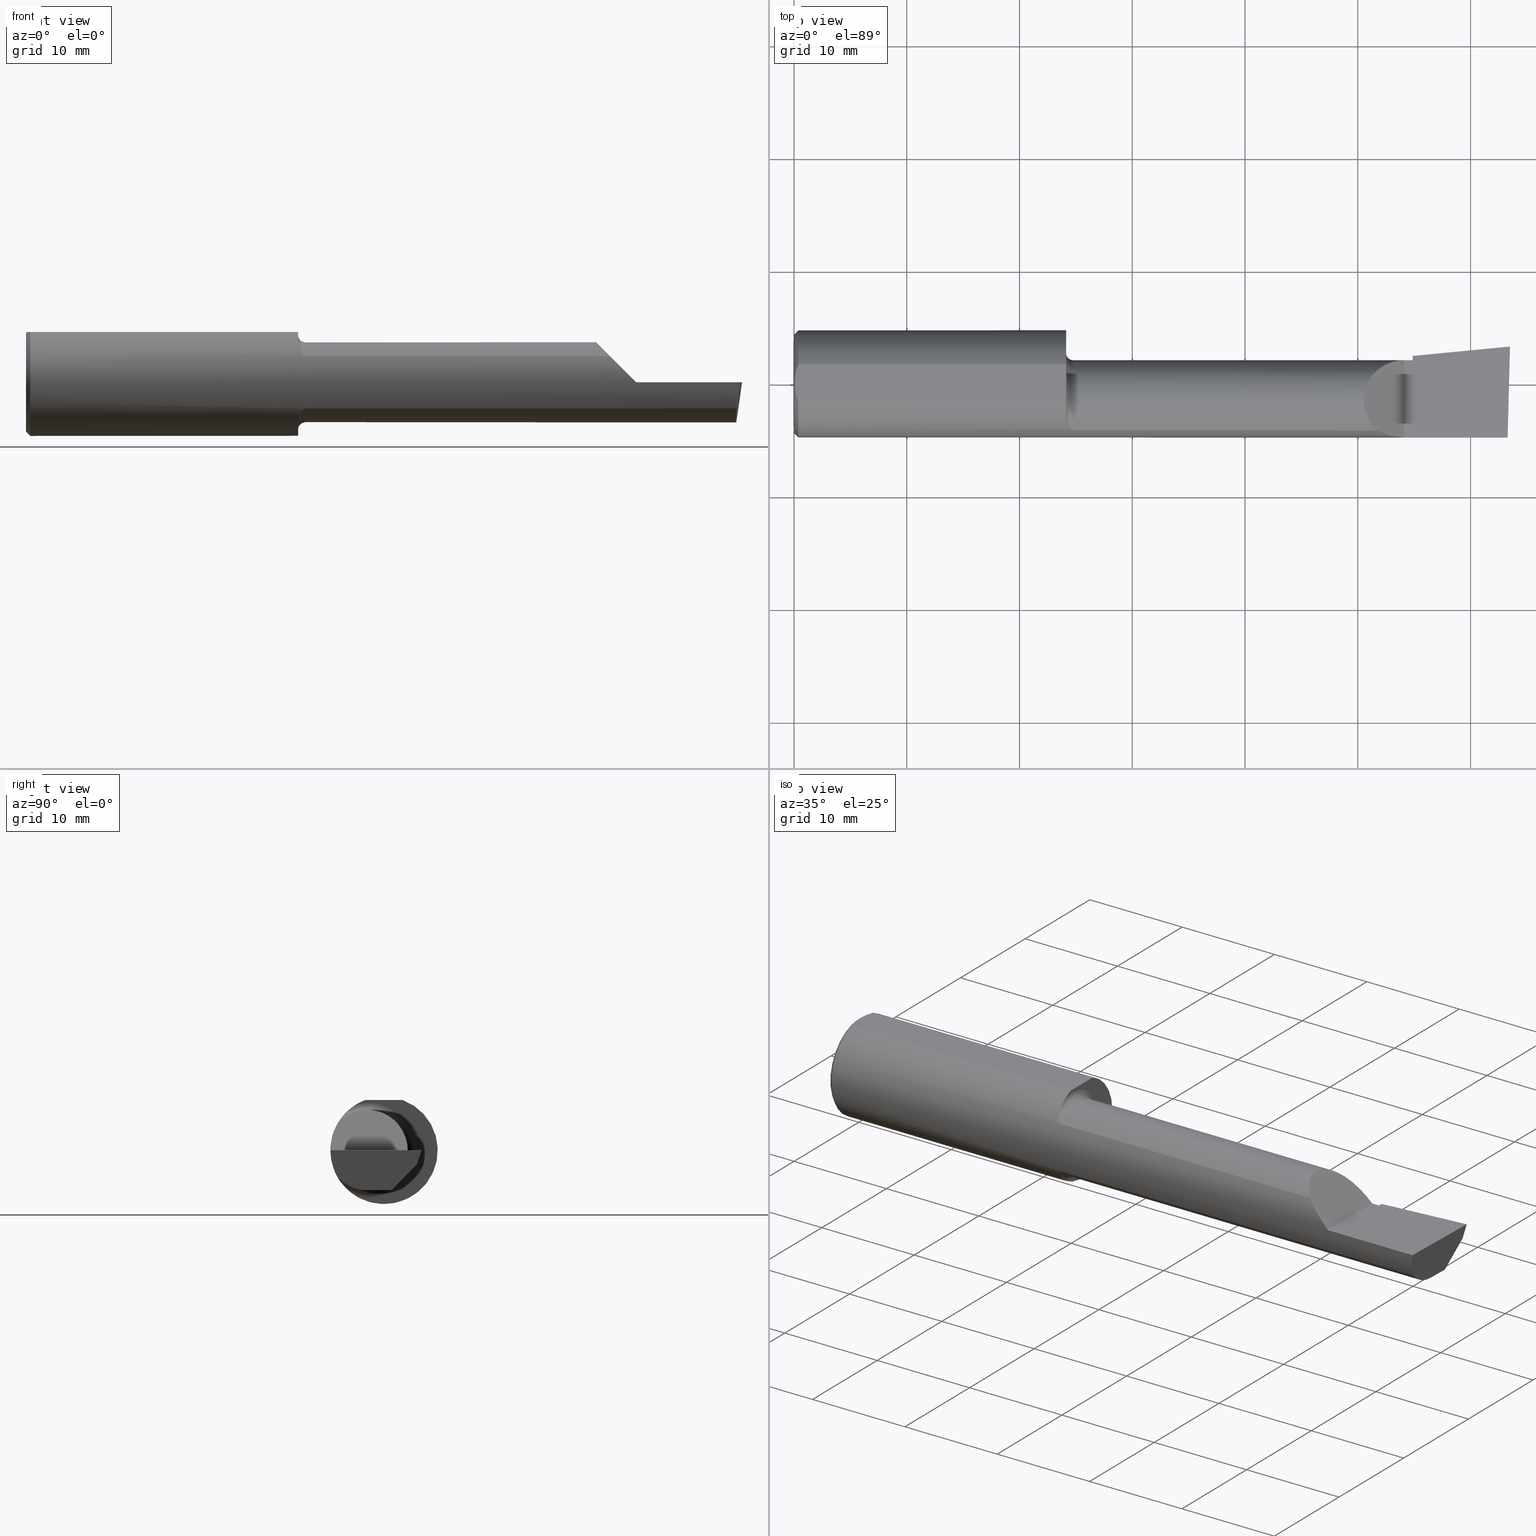
[diagram: canonical four-view strip — front | top / right | iso, engineering-drawing reading convention]
A machine part, canonical four-view strip (front | top / right | iso — engineering-drawing reading convention). The complete STEP part file that produces these views, byte-faithful:
ISO-10303-21;
HEADER;
FILE_DESCRIPTION (( 'STEP AP203' ),
    '1' );
FILE_NAME ('217489-B3201500.STEP',
    '2024-04-26T19:24:35',
    ( '' ),
    ( '' ),
    'SwSTEP 2.0',
    'SolidWorks 2022',
    '' );
FILE_SCHEMA (( 'CONFIG_CONTROL_DESIGN' ));
ENDSEC;

DATA;
#1 = CIRCLE ( 'NONE', #463, 0.1723499999999996424 ) ;
#2 = ADVANCED_FACE ( 'NONE', ( #567 ), #363, .T. ) ;
#3 = CONICAL_SURFACE ( 'NONE', #85, 0.1873499999999999888, 0.7853981633974602694 ) ;
#4 = CC_DESIGN_DATE_AND_TIME_ASSIGNMENT ( #501, #166, ( #450 ) ) ;
#5 = VERTEX_POINT ( 'NONE', #276 ) ;
#6 = APPROVAL_STATUS ( 'not_yet_approved' ) ;
#7 = CARTESIAN_POINT ( 'NONE',  ( 0.9728009145006649705, -0.1635956445997552022, 0.09130436773775203740 ) ) ;
#8 = ORIENTED_EDGE ( 'NONE', *, *, #311, .T. ) ;
#9 = COORDINATED_UNIVERSAL_TIME_OFFSET ( 8, 0, .BEHIND. ) ;
#10 = CARTESIAN_POINT ( 'NONE',  ( 0.01499999999999999424, 0.000000000000000000, -0.1873499999999999888 ) ) ;
#11 = CARTESIAN_POINT ( 'NONE',  ( 0.9749999999999999778, -0.1635956445993032859, -0.09130436773856137611 ) ) ;
#12 = VERTEX_POINT ( 'NONE', #504 ) ;
#13 = DATE_AND_TIME ( #256, #502 ) ;
#14 = CARTESIAN_POINT ( 'NONE',  ( 0.9709038625689692115, -0.1628809688430623848, 0.09258733509388457350 ) ) ;
#15 = VERTEX_POINT ( 'NONE', #611 ) ;
#16 = CARTESIAN_POINT ( 'NONE',  ( 2.160000000000000142, 0.09791172361283667636, 0.000000000000000000 ) ) ;
#17 = FACE_OUTER_BOUND ( 'NONE', #593, .T. ) ;
#18 = ORIENTED_EDGE ( 'NONE', *, *, #177, .F. ) ;
#19 = SHAPE_DEFINITION_REPRESENTATION ( #106, #73 ) ;
#20 = DIRECTION ( 'NONE',  ( 0.000000000000000000, 0.000000000000000000, 1.000000000000000000 ) ) ;
#21 = ORIENTED_EDGE ( 'NONE', *, *, #109, .F. ) ;
#22 = ADVANCED_FACE ( 'NONE', ( #368 ), #320, .F. ) ;
#23 = DIRECTION ( 'NONE',  ( -1.000000000000000000, -6.829619984160658046E-18, 0.000000000000000000 ) ) ;
#24 = ORIENTED_EDGE ( 'NONE', *, *, #467, .T. ) ;
#25 = CARTESIAN_POINT ( 'NONE',  ( 0.9499999999999999556, -0.05740000000000000657, 0.000000000000000000 ) ) ;
#26 = DIRECTION ( 'NONE',  ( -1.033731667140896077E-16, 0.000000000000000000, -1.000000000000000000 ) ) ;
#27 = CALENDAR_DATE ( 2024, 26, 4 ) ;
#28 = CARTESIAN_POINT ( 'NONE',  ( 0.01499999999999997863, -0.06597272163553657975, 0.1753499999999999781 ) ) ;
#29 = EDGE_CURVE ( 'NONE', #448, #488, #416, .T. ) ;
#30 = ORIENTED_EDGE ( 'NONE', *, *, #331, .F. ) ;
#31 = CIRCLE ( 'NONE', #526, 0.1873499999999999888 ) ;
#32 = CARTESIAN_POINT ( 'NONE',  ( 2.500000000000000000, 0.2373500000000000332, 0.1753499999999999504 ) ) ;
#33 = ORIENTED_EDGE ( 'NONE', *, *, #157, .T. ) ;
#34 = CIRCLE ( 'NONE', #118, 0.1650499999999999190 ) ;
#35 = CARTESIAN_POINT ( 'NONE',  ( 2.500000000000000000, -0.05739999999999999963, -0.1400500000000000633 ) ) ;
#36 = CARTESIAN_POINT ( 'NONE',  ( 0.01499999999999999424, 0.000000000000000000, -0.1873499999999999888 ) ) ;
#37 = LINE ( 'NONE', #189, #451 ) ;
#38 = CARTESIAN_POINT ( 'NONE',  ( 2.477889026591898247, -0.05682100378451882677, -0.1400500000000000633 ) ) ;
#39 = ADVANCED_FACE ( 'NONE', ( #45 ), #472, .F. ) ;
#40 = ORIENTED_EDGE ( 'NONE', *, *, #512, .F. ) ;
#41 = CARTESIAN_POINT ( 'NONE',  ( 2.481080296960508580, -0.1635956445993030639, -0.09130436773856169530 ) ) ;
#42 = CIRCLE ( 'NONE', #105, 0.1400499999999999245 ) ;
#43 = FACE_OUTER_BOUND ( 'NONE', #370, .T. ) ;
#44 = CARTESIAN_POINT ( 'NONE',  ( -9.564882787816662316E-19, 0.08264999999999995961, 3.267291166268304703E-16 ) ) ;
#45 = FACE_OUTER_BOUND ( 'NONE', #310, .T. ) ;
#46 = ORIENTED_EDGE ( 'NONE', *, *, #97, .T. ) ;
#47 = CARTESIAN_POINT ( 'NONE',  ( 0.9499999999999999556, 0.000000000000000000, 0.000000000000000000 ) ) ;
#48 = DIRECTION ( 'NONE',  ( -0.7071067811865511255, 0.000000000000000000, 0.7071067811865437980 ) ) ;
#49 = EDGE_CURVE ( 'NONE', #391, #15, #624, .T. ) ;
#50 = EDGE_LOOP ( 'NONE', ( #117, #299, #596, #99, #531, #215 ) ) ;
#51 = PLANE ( 'NONE',  #145 ) ;
#52 = CARTESIAN_POINT ( 'NONE',  ( 0.9749999999999999778, -0.1635956445993032859, -0.09130436773856137611 ) ) ;
#53 = ORGANIZATION ( 'UNSPECIFIED', 'UNSPECIFIED', '' ) ;
#54 = AXIS2_PLACEMENT_3D ( 'NONE', #614, #23, #128 ) ;
#55 = AXIS2_PLACEMENT_3D ( 'NONE', #412, #553, #265 ) ;
#56 = ORIENTED_EDGE ( 'NONE', *, *, #341, .T. ) ;
#57 = PERSON_AND_ORGANIZATION ( #191, #53 ) ;
#58 = PLANE ( 'NONE',  #198 ) ;
#59 = APPROVAL_DATE_TIME ( #13, #185 ) ;
#60 = LINE ( 'NONE', #296, #148 ) ;
#61 = VERTEX_POINT ( 'NONE', #143 ) ;
#62 = CARTESIAN_POINT ( 'NONE',  ( 0.000000000000000000, 0.000000000000000000, 0.000000000000000000 ) ) ;
#63 = CARTESIAN_POINT ( 'NONE',  ( 0.9499999999999999556, -0.1045082199249681848, -0.1557306416133593385 ) ) ;
#64 = ORIENTED_EDGE ( 'NONE', *, *, #446, .F. ) ;
#65 = CARTESIAN_POINT ( 'NONE',  ( 0.9580729541431403096, -0.1479074971576200548, 0.1152872342625229363 ) ) ;
#66 = ORIENTED_EDGE ( 'NONE', *, *, #139, .F. ) ;
#67 = PERSON_AND_ORGANIZATION ( #191, #53 ) ;
#68 = CARTESIAN_POINT ( 'NONE',  ( 0.003000000000000172667, -0.01126410975715121283, 0.1753500000000000059 ) ) ;
#69 = EDGE_CURVE ( 'NONE', #488, #339, #564, .T. ) ;
#70 = DIRECTION ( 'NONE',  ( -1.000000000000000000, -6.829619984160658046E-18, -0.000000000000000000 ) ) ;
#71 = ORIENTED_EDGE ( 'NONE', *, *, #382, .F. ) ;
#72 = DATE_AND_TIME ( #27, #220 ) ;
#73 = ADVANCED_BREP_SHAPE_REPRESENTATION ( '217489-B3201500', ( #312, #402 ), #355 ) ;
#74 = FACE_OUTER_BOUND ( 'NONE', #80, .T. ) ;
#75 = ORIENTED_EDGE ( 'NONE', *, *, #249, .T. ) ;
#76 = CARTESIAN_POINT ( 'NONE',  ( 0.01128414053810044941, -0.05542038647445821781, 0.1753499999999999781 ) ) ;
#77 = ORIENTED_EDGE ( 'NONE', *, *, #426, .T. ) ;
#78 = ORIENTED_EDGE ( 'NONE', *, *, #136, .T. ) ;
#79 = CARTESIAN_POINT ( 'NONE',  ( 0.000000000000000000, 0.000000000000000000, 0.000000000000000000 ) ) ;
#80 = EDGE_LOOP ( 'NONE', ( #483, #169 ) ) ;
#81 = LOCAL_TIME ( 12, 24, 35.00000000000000000, #344 ) ;
#82 = CIRCLE ( 'NONE', #178, 0.1400500000000000356 ) ;
#83 = DIRECTION ( 'NONE',  ( -0.06894566448119621160, 0.7160281025913034503, -0.6946583704589934793 ) ) ;
#84 = ORIENTED_EDGE ( 'NONE', *, *, #275, .T. ) ;
#85 = AXIS2_PLACEMENT_3D ( 'NONE', #108, #207, #433 ) ;
#86 = DIRECTION ( 'NONE',  ( 1.000000000000000000, 0.000000000000000000, 0.000000000000000000 ) ) ;
#87 = CARTESIAN_POINT ( 'NONE',  ( 2.129999999999999893, -0.1873499999999999888, 1.065442715258197396E-16 ) ) ;
#88 = EDGE_CURVE ( 'NONE', #124, #456, #376, .T. ) ;
#89 = CARTESIAN_POINT ( 'NONE',  ( 0.000000000000000000, 0.000000000000000000, 0.000000000000000000 ) ) ;
#90 = DIRECTION ( 'NONE',  ( 0.000000000000000000, 1.000000000000000000, 8.537024980200821325E-17 ) ) ;
#91 = DIRECTION ( 'NONE',  ( 0.000000000000000000, -1.000000000000000000, 0.000000000000000000 ) ) ;
#92 = AXIS2_PLACEMENT_3D ( 'NONE', #380, #146, #284 ) ;
#93 = DIRECTION ( 'NONE',  ( 0.000000000000000000, 0.000000000000000000, 1.000000000000000000 ) ) ;
#94 = CIRCLE ( 'NONE', #337, 0.1400500000000000356 ) ;
#95 = EDGE_LOOP ( 'NONE', ( #316, #500, #462, #497 ) ) ;
#96 = DIRECTION ( 'NONE',  ( -1.000000000000000000, 5.691349986800549142E-18, -0.000000000000000000 ) ) ;
#97 = EDGE_CURVE ( 'NONE', #12, #323, #94, .T. ) ;
#98 = CARTESIAN_POINT ( 'NONE',  ( 0.9499999999999999556, 0.000000000000000000, 0.000000000000000000 ) ) ;
#99 = ORIENTED_EDGE ( 'NONE', *, *, #360, .F. ) ;
#100 = PERSON_AND_ORGANIZATION_ROLE ( 'creator' ) ;
#101 = DIRECTION ( 'NONE',  ( 0.000000000000000000, -1.000000000000000000, 0.000000000000000000 ) ) ;
#102 = DATE_TIME_ROLE ( 'creation_date' ) ;
#103 = CARTESIAN_POINT ( 'NONE',  ( 0.9530259122056835563, -0.1310442973014115942, 0.1341609063345041708 ) ) ;
#104 = LOCAL_TIME ( 12, 24, 35.00000000000000000, #548 ) ;
#105 = AXIS2_PLACEMENT_3D ( 'NONE', #140, #187, #142 ) ;
#106 = PRODUCT_DEFINITION_SHAPE ( 'NONE', 'NONE',  #438 ) ;
#107 = DATE_AND_TIME ( #291, #104 ) ;
#108 = CARTESIAN_POINT ( 'NONE',  ( 0.01499999999999999424, 0.000000000000000000, 0.000000000000000000 ) ) ;
#109 = EDGE_CURVE ( 'NONE', #124, #15, #378, .T. ) ;
#110 = ORIENTED_EDGE ( 'NONE', *, *, #69, .F. ) ;
#111 = APPROVAL_ROLE ( '' ) ;
#112 = CARTESIAN_POINT ( 'NONE',  ( 0.9500000000000002887, -0.1045012500212954831, 0.1557348687830034384 ) ) ;
#113 = ORIENTED_EDGE ( 'NONE', *, *, #382, .T. ) ;
#114 = DIRECTION ( 'NONE',  ( 0.000000000000000000, 0.000000000000000000, 1.000000000000000000 ) ) ;
#115 = CARTESIAN_POINT ( 'NONE',  ( 0.9561458414306042153, -0.1426194794824340306, -0.1217813759115466965 ) ) ;
#116 = VECTOR ( 'NONE', #190, 39.37007874015748854 ) ;
#117 = ORIENTED_EDGE ( 'NONE', *, *, #121, .F. ) ;
#118 = AXIS2_PLACEMENT_3D ( 'NONE', #25, #70, #449 ) ;
#119 = EDGE_CURVE ( 'NONE', #61, #625, #199, .T. ) ;
#120 = CARTESIAN_POINT ( 'NONE',  ( 2.038695632261437130, -0.1635956445993029529, 0.09130436773856188959 ) ) ;
#121 = EDGE_CURVE ( 'NONE', #444, #61, #200, .T. ) ;
#122 = COORDINATED_UNIVERSAL_TIME_OFFSET ( 8, 0, .BEHIND. ) ;
#123 = CARTESIAN_POINT ( 'NONE',  ( 2.160000000000000142, 0.09791172361284175563, 3.308097179827818849E-16 ) ) ;
#124 = VERTEX_POINT ( 'NONE', #381 ) ;
#125 = CARTESIAN_POINT ( 'NONE',  ( 2.129999999999999893, 0.08264999999999983471, 1.065442715258197396E-16 ) ) ;
#126 = ORIENTED_EDGE ( 'NONE', *, *, #130, .T. ) ;
#127 = VECTOR ( 'NONE', #460, 39.37007874015748854 ) ;
#128 = DIRECTION ( 'NONE',  ( 6.829619984160658046E-18, -1.000000000000000000, 0.000000000000000000 ) ) ;
#129 = EDGE_LOOP ( 'NONE', ( #294, #228, #110, #71, #440 ) ) ;
#130 = EDGE_CURVE ( 'NONE', #208, #226, #343, .T. ) ;
#131 = PLANE ( 'NONE',  #54 ) ;
#132 = CARTESIAN_POINT ( 'NONE',  ( 2.509953961983671711, 0.1316084575252021438, -6.829619984160658046E-17 ) ) ;
#133 = PLANE ( 'NONE',  #373 ) ;
#134 = ORIENTED_EDGE ( 'NONE', *, *, #603, .F. ) ;
#135 = CARTESIAN_POINT ( 'NONE',  ( 2.160000000000000142, 0.01441505128072300204, -0.1202356058309979880 ) ) ;
#136 = EDGE_CURVE ( 'NONE', #5, #266, #571, .T. ) ;
#137 = DIRECTION ( 'NONE',  ( -0.7071067811865439090, 0.000000000000000000, -0.7071067811865512365 ) ) ;
#138 = VECTOR ( 'NONE', #182, 39.37007874015748143 ) ;
#139 = EDGE_CURVE ( 'NONE', #492, #556, #31, .T. ) ;
#140 = CARTESIAN_POINT ( 'NONE',  ( 0.9749999999999999778, -0.05740000000000000657, 0.000000000000000000 ) ) ;
#141 = CARTESIAN_POINT ( 'NONE',  ( 0.008244775919947424855, 0.04453482769755855164, 0.1753499999999999504 ) ) ;
#142 = DIRECTION ( 'NONE',  ( 0.000000000000000000, -1.000000000000000000, 0.000000000000000000 ) ) ;
#143 = CARTESIAN_POINT ( 'NONE',  ( 2.129999999999999893, -0.1873499999999999888, 1.065442715258197396E-16 ) ) ;
#144 = ADVANCED_FACE ( 'NONE', ( #43 ), #414, .T. ) ;
#145 = AXIS2_PLACEMENT_3D ( 'NONE', #16, #383, #386 ) ;
#146 = DIRECTION ( 'NONE',  ( 1.000000000000000000, 6.829619984160658046E-18, 0.000000000000000000 ) ) ;
#147 = B_SPLINE_CURVE_WITH_KNOTS ( 'NONE', 3,
 ( #52, #203, #387, #585, #345, #153, #160, #392, #115, #491, #536, #485, #63, #592 ),
 .UNSPECIFIED., .F., .F.,
 ( 4, 2, 2, 2, 2, 2, 4 ),
 ( 1.968340875534775316E-07, 0.0001667114270246243708, 0.0003332260199616952716, 0.0006662552058358422232, 0.001332313577584134500, 0.001998371949332426994, 0.002664430321080719921 ),
 .UNSPECIFIED. ) ;
#148 = VECTOR ( 'NONE', #301, 39.37007874015748854 ) ;
#149 = PERSON_AND_ORGANIZATION ( #191, #53 ) ;
#150 = CARTESIAN_POINT ( 'NONE',  ( 3.377502344341257155E-32, -0.1873499999999999610, 3.267291166268304703E-16 ) ) ;
#151 = ORIENTED_EDGE ( 'NONE', *, *, #341, .F. ) ;
#152 = APPROVAL_ROLE ( '' ) ;
#153 = CARTESIAN_POINT ( 'NONE',  ( 0.9637431740823498849, -0.1572750258711011206, -0.1018777902325210954 ) ) ;
#154 = ORIENTED_EDGE ( 'NONE', *, *, #358, .T. ) ;
#155 = COORDINATED_UNIVERSAL_TIME_OFFSET ( 8, 0, .BEHIND. ) ;
#156 = CARTESIAN_POINT ( 'NONE',  ( 0.000000000000000000, -0.05740000000000001351, 0.000000000000000000 ) ) ;
#157 = EDGE_CURVE ( 'NONE', #161, #353, #372, .T. ) ;
#158 = EDGE_CURVE ( 'NONE', #339, #266, #278, .T. ) ;
#159 = PERSON_AND_ORGANIZATION_ROLE ( 'design_owner' ) ;
#160 = CARTESIAN_POINT ( 'NONE',  ( 0.9621845987149126866, -0.1550322129197698462, -0.1052705638704080071 ) ) ;
#161 = VERTEX_POINT ( 'NONE', #245 ) ;
#162 = SECURITY_CLASSIFICATION_LEVEL ( 'unclassified' ) ;
#163 = DIRECTION ( 'NONE',  ( -1.000000000000000000, -6.829619984160658046E-18, -0.000000000000000000 ) ) ;
#164 = EDGE_CURVE ( 'NONE', #560, #15, #193, .T. ) ;
#165 = ORIENTED_EDGE ( 'NONE', *, *, #613, .F. ) ;
#166 = DATE_TIME_ROLE ( 'classification_date' ) ;
#167 = CARTESIAN_POINT ( 'NONE',  ( 0.9518917549365450981, -0.1247344934163568814, 0.1400506178720500039 ) ) ;
#168 = VECTOR ( 'NONE', #568, 39.37007874015748143 ) ;
#169 = ORIENTED_EDGE ( 'NONE', *, *, #293, .T. ) ;
#170 = AXIS2_PLACEMENT_3D ( 'NONE', #397, #364, #20 ) ;
#171 = CARTESIAN_POINT ( 'NONE',  ( 2.160000000000000142, 0.06495571228477943493, -0.06814016562413294231 ) ) ;
#172 = ORIENTED_EDGE ( 'NONE', *, *, #158, .F. ) ;
#173 = CARTESIAN_POINT ( 'NONE',  ( 0.01499999999999999424, 0.06597272163553663527, 0.1753499999999999781 ) ) ;
#174 = VERTEX_POINT ( 'NONE', #240 ) ;
#175 = CARTESIAN_POINT ( 'NONE',  ( 1.921229036482944075, -0.06260079402492431389, 0.2087709635170537925 ) ) ;
#176 = ORIENTED_EDGE ( 'NONE', *, *, #232, .T. ) ;
#177 = EDGE_CURVE ( 'NONE', #5, #448, #496, .T. ) ;
#178 = AXIS2_PLACEMENT_3D ( 'NONE', #623, #471, #91 ) ;
#179 = VECTOR ( 'NONE', #520, 39.37007874015748143 ) ;
#180 = CARTESIAN_POINT ( 'NONE',  ( 2.160000000000000142, 0.09456875743780475407, -0.01088401009027229610 ) ) ;
#181 = ORIENTED_EDGE ( 'NONE', *, *, #224, .T. ) ;
#182 = DIRECTION ( 'NONE',  ( -6.829619984160658816E-18, 1.000000000000000000, 7.059994452165177242E-34 ) ) ;
#183 = ORIENTED_EDGE ( 'NONE', *, *, #49, .F. ) ;
#184 = ADVANCED_FACE ( 'NONE', ( #429 ), #287, .F. ) ;
#185 = APPROVAL ( #252, 'UNSPECIFIED' ) ;
#186 = VERTEX_POINT ( 'NONE', #588 ) ;
#187 = DIRECTION ( 'NONE',  ( -1.000000000000000000, -6.829619984160658046E-18, -0.000000000000000000 ) ) ;
#188 = DIRECTION ( 'NONE',  ( 0.7071067811865390240, 8.659560562355036396E-17, 0.7071067811865560104 ) ) ;
#189 = CARTESIAN_POINT ( 'NONE',  ( 2.490039159128059953, -0.2497391662021650194, 6.932588350567417155E-17 ) ) ;
#190 = DIRECTION ( 'NONE',  ( 4.755568962650853567E-18, -0.6963153109074925462, -0.7177360153954946975 ) ) ;
#191 = PERSON ( 'UNSPECIFIED', 'UNSPECIFIED', 'UNSPECIFIED', ('UNSPECIFIED'), ('UNSPECIFIED'), ('UNSPECIFIED') ) ;
#192 = CARTESIAN_POINT ( 'NONE',  ( 1.567500000000000115, -0.1635956445993030639, 0.09130436773856169530 ) ) ;
#193 = LINE ( 'NONE', #329, #116 ) ;
#194 = PLANE ( 'NONE',  #609 ) ;
#195 = DIRECTION ( 'NONE',  ( -1.000000000000000000, -6.829619984160658046E-18, -0.000000000000000000 ) ) ;
#196 = VERTEX_POINT ( 'NONE', #490 ) ;
#197 = LINE ( 'NONE', #44, #221 ) ;
#198 = AXIS2_PLACEMENT_3D ( 'NONE', #436, #495, #390 ) ;
#199 =( BOUNDED_CURVE ( )  B_SPLINE_CURVE ( 3, ( #87, #619, #470, #338 ),
 .UNSPECIFIED., .F., .T. ) 
 B_SPLINE_CURVE_WITH_KNOTS ( ( 4, 4 ),
 ( 4.712388980384689674, 5.221437360734125122 ),
 .UNSPECIFIED. ) 
 CURVE ( )  GEOMETRIC_REPRESENTATION_ITEM ( )  RATIONAL_B_SPLINE_CURVE ( ( 1.000000000000000000, 0.9785221379938656705, 0.9785221379938656705, 1.000000000000000000 ) ) 
 REPRESENTATION_ITEM ( '' )  );
#200 = LINE ( 'NONE', #150, #406 ) ;
#201 = AXIS2_PLACEMENT_3D ( 'NONE', #32, #218, #605 ) ;
#202 = LENGTH_MEASURE_WITH_UNIT ( LENGTH_MEASURE( 0.02539999999999999897 ), #349 );
#203 = CARTESIAN_POINT ( 'NONE',  ( 0.9727799353194344079, -0.1635956445993032582, -0.09130436773856143162 ) ) ;
#204 = ORIENTED_EDGE ( 'NONE', *, *, #69, .T. ) ;
#205 = PERSON_AND_ORGANIZATION ( #191, #53 ) ;
#206 = ADVANCED_FACE ( 'NONE', ( #597 ), #3, .T. ) ;
#207 = DIRECTION ( 'NONE',  ( 1.000000000000000000, 0.000000000000000000, 0.000000000000000000 ) ) ;
#208 = VERTEX_POINT ( 'NONE', #253 ) ;
#209 = MECHANICAL_CONTEXT ( 'NONE', #541, 'mechanical' ) ;
#210 = CARTESIAN_POINT ( 'NONE',  ( 0.9668559945294940006, -0.1603175578889970421, 0.09696363432848423280 ) ) ;
#211 = EDGE_LOOP ( 'NONE', ( #395, #513, #604, #280, #405, #453 ) ) ;
#212 = PERSON_AND_ORGANIZATION_ROLE ( 'creator' ) ;
#213 = FACE_OUTER_BOUND ( 'NONE', #219, .T. ) ;
#214 = EDGE_CURVE ( 'NONE', #556, #196, #545, .T. ) ;
#215 = ORIENTED_EDGE ( 'NONE', *, *, #527, .F. ) ;
#216 = DIRECTION ( 'NONE',  ( 6.829619984160658816E-18, -1.000000000000000000, 0.000000000000000000 ) ) ;
#217 = ORIENTED_EDGE ( 'NONE', *, *, #164, .T. ) ;
#218 = DIRECTION ( 'NONE',  ( 0.000000000000000000, -1.438723400918613551E-16, -1.000000000000000000 ) ) ;
#219 = EDGE_LOOP ( 'NONE', ( #528, #126, #509, #385, #154, #251, #46, #398, #459, #64 ) ) ;
#220 = LOCAL_TIME ( 12, 24, 35.00000000000000000, #122 ) ;
#221 = VECTOR ( 'NONE', #626, 39.37007874015748143 ) ;
#222 = FACE_OUTER_BOUND ( 'NONE', #547, .T. ) ;
#223 = EDGE_LOOP ( 'NONE', ( #534, #8, #77, #427 ) ) ;
#224 = EDGE_CURVE ( 'NONE', #208, #456, #262, .T. ) ;
#225 = FACE_OUTER_BOUND ( 'NONE', #129, .T. ) ;
#226 = VERTEX_POINT ( 'NONE', #11 ) ;
#227 = DIRECTION ( 'NONE',  ( 0.9953961983671787417, 0.09584575252022459191, -1.028972571603813720E-16 ) ) ;
#228 = ORIENTED_EDGE ( 'NONE', *, *, #565, .F. ) ;
#229 = APPLICATION_CONTEXT ( 'configuration controlled 3d designs of mechanical parts and assemblies' ) ;
#230 = CYLINDRICAL_SURFACE ( 'NONE', #304, 0.1873499999999999888 ) ;
#231 = EDGE_LOOP ( 'NONE', ( #273, #56 ) ) ;
#232 = EDGE_CURVE ( 'NONE', #124, #161, #60, .T. ) ;
#233 = CC_DESIGN_PERSON_AND_ORGANIZATION_ASSIGNMENT ( #389, #587, ( #450 ) ) ;
#234 = LINE ( 'NONE', #242, #482 ) ;
#235 = DIRECTION ( 'NONE',  ( 1.000000000000000000, 6.829619984160658046E-18, 0.000000000000000000 ) ) ;
#236 = DIRECTION ( 'NONE',  ( -1.000000000000000000, -6.829619984160658046E-18, 0.000000000000000000 ) ) ;
#237 = CARTESIAN_POINT ( 'NONE',  ( 2.129999999999999893, -0.2500000000000000555, 1.065442715258197396E-16 ) ) ;
#238 = ORIENTED_EDGE ( 'NONE', *, *, #249, .F. ) ;
#239 = DIRECTION ( 'NONE',  ( 0.02617694830779364323, 0.9996573249755593693, -2.665804247635780349E-18 ) ) ;
#240 = CARTESIAN_POINT ( 'NONE',  ( 2.499999999999978684, 0.1306500000000238582, 8.403660643088248419E-14 ) ) ;
#241 = ORIENTED_EDGE ( 'NONE', *, *, #584, .F. ) ;
#242 = CARTESIAN_POINT ( 'NONE',  ( 2.129999999999999893, -0.2500000000000000555, 1.065442715258197396E-16 ) ) ;
#243 = CARTESIAN_POINT ( 'NONE',  ( 1.567500000000000115, -0.1635956445993030639, -0.09130436773856169530 ) ) ;
#244 = CC_DESIGN_DATE_AND_TIME_ASSIGNMENT ( #107, #102, ( #438 ) ) ;
#245 = CARTESIAN_POINT ( 'NONE',  ( 2.493439983562941720, 0.1146611065212079089, -0.04999999999999999584 ) ) ;
#246 = DIRECTION ( 'NONE',  ( 1.000000000000000000, 0.000000000000000000, 0.000000000000000000 ) ) ;
#247 = VECTOR ( 'NONE', #533, 39.37007874015748143 ) ;
#248 = CARTESIAN_POINT ( 'NONE',  ( 2.476787929832031221, -0.09887019258091189755, -0.1400500000000000078 ) ) ;
#249 = EDGE_CURVE ( 'NONE', #226, #186, #147, .T. ) ;
#250 = ADVANCED_FACE ( 'NONE', ( #17 ), #58, .F. ) ;
#251 = ORIENTED_EDGE ( 'NONE', *, *, #437, .T. ) ;
#252 = APPROVAL_STATUS ( 'not_yet_approved' ) ;
#253 = CARTESIAN_POINT ( 'NONE',  ( 2.481080296960508580, -0.1635956445993030639, -0.09130436773856169530 ) ) ;
#254 =( CONVERSION_BASED_UNIT ( 'INCH', #202 ) LENGTH_UNIT ( ) NAMED_UNIT ( #521 ) );
#255 = ORIENTED_EDGE ( 'NONE', *, *, #88, .T. ) ;
#256 = CALENDAR_DATE ( 2024, 26, 4 ) ;
#257 = APPROVAL_PERSON_ORGANIZATION ( #67, #514, #411 ) ;
#258 = CARTESIAN_POINT ( 'NONE',  ( 2.129999999999999893, 0.08264999999999983471, 1.065442715258197396E-16 ) ) ;
#259 = AXIS2_PLACEMENT_3D ( 'NONE', #563, #26, #410 ) ;
#260 = ORIENTED_EDGE ( 'NONE', *, *, #358, .F. ) ;
#261 = DIRECTION ( 'NONE',  ( 6.829619984160658816E-18, -1.000000000000000000, 0.000000000000000000 ) ) ;
#262 =( BOUNDED_CURVE ( )  B_SPLINE_CURVE ( 3, ( #480, #292, #248, #542 ),
 .UNSPECIFIED., .F., .T. ) 
 B_SPLINE_CURVE_WITH_KNOTS ( ( 4, 4 ),
 ( 5.632580117768154260, 6.493234751459282528 ),
 .UNSPECIFIED. ) 
 CURVE ( )  GEOMETRIC_REPRESENTATION_ITEM ( )  RATIONAL_B_SPLINE_CURVE ( ( 1.000000000000000000, 0.9392195014330942948, 0.9392195014330942948, 1.000000000000000000 ) ) 
 REPRESENTATION_ITEM ( '' )  );
#263 = VERTEX_POINT ( 'NONE', #258 ) ;
#264 = CARTESIAN_POINT ( 'NONE',  ( 0.003000000000000218638, 2.334609556160449697E-17, 0.1753499999999999781 ) ) ;
#265 = DIRECTION ( 'NONE',  ( -6.829619984160658046E-18, 1.000000000000000000, 0.000000000000000000 ) ) ;
#266 = VERTEX_POINT ( 'NONE', #10 ) ;
#267 = CC_DESIGN_SECURITY_CLASSIFICATION ( #450, ( #334 ) ) ;
#268 = ADVANCED_FACE ( 'NONE', ( #213 ), #445, .T. ) ;
#269 = ADVANCED_FACE ( 'NONE', ( #298 ), #277, .F. ) ;
#270 = DIRECTION ( 'NONE',  ( 6.829619984160658046E-18, -1.000000000000000000, 1.438723400918613551E-16 ) ) ;
#271 = ORIENTED_EDGE ( 'NONE', *, *, #537, .F. ) ;
#272 = DIRECTION ( 'NONE',  ( 0.000000000000000000, 0.000000000000000000, 1.000000000000000000 ) ) ;
#273 = ORIENTED_EDGE ( 'NONE', *, *, #177, .T. ) ;
#274 = PLANE ( 'NONE',  #201 ) ;
#275 = EDGE_CURVE ( 'NONE', #266, #431, #306, .T. ) ;
#276 = CARTESIAN_POINT ( 'NONE',  ( 0.000000000000000000, 0.000000000000000000, -0.1723499999999996424 ) ) ;
#277 = TOROIDAL_SURFACE ( 'NONE', #561, 0.1650499999999999190, 0.02500000000000000486 ) ;
#278 = CIRCLE ( 'NONE', #393, 0.1873499999999999888 ) ;
#279 = CARTESIAN_POINT ( 'NONE',  ( 2.487725449370724817, -0.1873500000000000443, -0.03213820089768505694 ) ) ;
#280 = ORIENTED_EDGE ( 'NONE', *, *, #293, .F. ) ;
#281 = CARTESIAN_POINT ( 'NONE',  ( 0.000000000000000000, -0.06597272163553657975, 0.1753499999999999781 ) ) ;
#282 = DIRECTION ( 'NONE',  ( 0.000000000000000000, 0.000000000000000000, 1.000000000000000000 ) ) ;
#283 = ORIENTED_EDGE ( 'NONE', *, *, #136, .F. ) ;
#284 = DIRECTION ( 'NONE',  ( 0.000000000000000000, -1.000000000000000000, 0.000000000000000000 ) ) ;
#285 = CARTESIAN_POINT ( 'NONE',  ( 2.511419111345317923, 0.1163922996227946260, -0.04999999999999999584 ) ) ;
#286 = PLANE ( 'NONE',  #335 ) ;
#287 = PLANE ( 'NONE',  #461 ) ;
#288 = EDGE_LOOP ( 'NONE', ( #21, #255, #598, #554 ) ) ;
#289 = CARTESIAN_POINT ( 'NONE',  ( 2.160000000000000142, 0.09791172361283667636, 0.000000000000000000 ) ) ;
#290 = CARTESIAN_POINT ( 'NONE',  ( 0.01125230581755086272, 0.05532998191409922023, 0.1753500000000000059 ) ) ;
#291 = CALENDAR_DATE ( 2024, 26, 4 ) ;
#292 = CARTESIAN_POINT ( 'NONE',  ( 2.477925907309857401, -0.1365595166907236646, -0.1227499502647107360 ) ) ;
#293 = EDGE_CURVE ( 'NONE', #323, #560, #309, .T. ) ;
#294 = ORIENTED_EDGE ( 'NONE', *, *, #419, .F. ) ;
#295 = AXIS2_PLACEMENT_3D ( 'NONE', #47, #417, #428 ) ;
#296 = CARTESIAN_POINT ( 'NONE',  ( 2.493766568580444432, 0.1168246249203732934, -0.04780233936830599606 ) ) ;
#297 = CALENDAR_DATE ( 2024, 26, 4 ) ;
#298 = FACE_OUTER_BOUND ( 'NONE', #400, .T. ) ;
#299 = ORIENTED_EDGE ( 'NONE', *, *, #584, .T. ) ;
#300 = PERSON_AND_ORGANIZATION ( #191, #53 ) ;
#301 = DIRECTION ( 'NONE',  ( 0.1053106618240635256, 0.6976485211320200275, 0.7086580314005359593 ) ) ;
#302 = EDGE_LOOP ( 'NONE', ( #134, #33, #543, #550 ) ) ;
#303 = APPLICATION_PROTOCOL_DEFINITION ( 'international standard', 'config_control_design', 1994, #541 ) ;
#304 = AXIS2_PLACEMENT_3D ( 'NONE', #79, #407, #272 ) ;
#305 = DIRECTION ( 'NONE',  ( -1.000000000000000000, -6.829619984160658046E-18, -0.000000000000000000 ) ) ;
#306 = CIRCLE ( 'NONE', #170, 0.1873499999999999888 ) ;
#307 = ORIENTED_EDGE ( 'NONE', *, *, #29, .T. ) ;
#308 = PLANE ( 'NONE',  #55 ) ;
#309 = LINE ( 'NONE', #359, #127 ) ;
#310 = EDGE_LOOP ( 'NONE', ( #260, #408, #479 ) ) ;
#311 = EDGE_CURVE ( 'NONE', #351, #353, #319, .T. ) ;
#312 = MANIFOLD_SOLID_BREP ( 'Extrude7', #473 ) ;
#313 = DIRECTION ( 'NONE',  ( 2.005228508682076666E-18, -0.2936076258024060692, -0.9559260233253795702 ) ) ;
#314 = DIRECTION ( 'NONE',  ( 0.000000000000000000, 0.2936076258024060692, 0.9559260233253795702 ) ) ;
#315 = FACE_OUTER_BOUND ( 'NONE', #95, .T. ) ;
#316 = ORIENTED_EDGE ( 'NONE', *, *, #537, .T. ) ;
#317 = EDGE_CURVE ( 'NONE', #351, #174, #599, .T. ) ;
#318 = ORIENTED_EDGE ( 'NONE', *, *, #130, .F. ) ;
#319 = LINE ( 'NONE', #180, #515 ) ;
#320 = PLANE ( 'NONE',  #259 ) ;
#321 = CARTESIAN_POINT ( 'NONE',  ( 0.9499999999999999556, -0.06597272163553659363, 0.1753499999999999781 ) ) ;
#322 =( BOUNDED_CURVE ( )  B_SPLINE_CURVE ( 3, ( #120, #175, #559, #125 ),
 .UNSPECIFIED., .F., .T. ) 
 B_SPLINE_CURVE_WITH_KNOTS ( ( 4, 4 ),
 ( 5.422530673488458852, 7.853981633974482790 ),
 .UNSPECIFIED. ) 
 CURVE ( )  GEOMETRIC_REPRESENTATION_ITEM ( )  RATIONAL_B_SPLINE_CURVE ( ( 1.000000000000000000, 0.5651045289226863666, 0.5651045289226863666, 1.000000000000000000 ) ) 
 REPRESENTATION_ITEM ( '' )  );
#323 = VERTEX_POINT ( 'NONE', #171 ) ;
#324 = VECTOR ( 'NONE', #227, 39.37007874015748143 ) ;
#325 = VECTOR ( 'NONE', #90, 39.37007874015748143 ) ;
#326 = CARTESIAN_POINT ( 'NONE',  ( 0.000000000000000000, 0.06597272163553663527, 0.1753499999999999781 ) ) ;
#327 = DIRECTION ( 'NONE',  ( -1.000000000000000000, -0.000000000000000000, -0.000000000000000000 ) ) ;
#328 = CARTESIAN_POINT ( 'NONE',  ( 2.500188977433779769, 0.1311105994646662165, 0.001440373173041280741 ) ) ;
#329 = CARTESIAN_POINT ( 'NONE',  ( 2.160000000000000142, 0.06382066673065313334, -0.06931012851386068874 ) ) ;
#330 = ADVANCED_FACE ( 'NONE', ( #315 ), #308, .T. ) ;
#331 = EDGE_CURVE ( 'NONE', #556, #186, #34, .T. ) ;
#332 = DIRECTION ( 'NONE',  ( 1.000000000000000000, 6.829619984160658046E-18, 0.000000000000000000 ) ) ;
#333 = DIRECTION ( 'NONE',  ( 0.000000000000000000, 1.000000000000000000, 0.000000000000000000 ) ) ;
#334 = PRODUCT_DEFINITION_FORMATION_WITH_SPECIFIED_SOURCE ( 'ANY', '', #590, .NOT_KNOWN. ) ;
#335 = AXIS2_PLACEMENT_3D ( 'NONE', #89, #477, #529 ) ;
#336 = LINE ( 'NONE', #281, #168 ) ;
#337 = AXIS2_PLACEMENT_3D ( 'NONE', #580, #195, #101 ) ;
#338 = CARTESIAN_POINT ( 'NONE',  ( 2.038695632261437130, -0.1635956445993029529, 0.09130436773856188959 ) ) ;
#339 = VERTEX_POINT ( 'NONE', #173 ) ;
#340 =( NAMED_UNIT ( * ) PLANE_ANGLE_UNIT ( ) SI_UNIT ( $, .RADIAN. ) );
#341 = EDGE_CURVE ( 'NONE', #448, #5, #1, .T. ) ;
#342 = CC_DESIGN_PERSON_AND_ORGANIZATION_ASSIGNMENT ( #396, #594, ( #334 ) ) ;
#343 = LINE ( 'NONE', #243, #179 ) ;
#344 = COORDINATED_UNIVERSAL_TIME_OFFSET ( 8, 0, .BEHIND. ) ;
#345 = CARTESIAN_POINT ( 'NONE',  ( 0.9668149093790885384, -0.1602818635245159273, -0.09702252612905266915 ) ) ;
#346 = VERTEX_POINT ( 'NONE', #367 ) ;
#347 = CARTESIAN_POINT ( 'NONE',  ( 0.9561423219567505294, -0.1426151417460932158, 0.1217894822571231050 ) ) ;
#348 = EDGE_LOOP ( 'NONE', ( #507, #18, #78, #84, #113 ) ) ;
#349 =( LENGTH_UNIT ( ) NAMED_UNIT ( * ) SI_UNIT ( $, .METRE. ) );
#350 = ADVANCED_FACE ( 'NONE', ( #225 ), #274, .F. ) ;
#351 = VERTEX_POINT ( 'NONE', #123 ) ;
#352 = CARTESIAN_POINT ( 'NONE',  ( 0.9637641080978832653, -0.1573043405450773313, 0.1018329020719633132 ) ) ;
#353 = VERTEX_POINT ( 'NONE', #415 ) ;
#354 = CALENDAR_DATE ( 2024, 26, 4 ) ;
#355 =( GEOMETRIC_REPRESENTATION_CONTEXT ( 3 ) GLOBAL_UNCERTAINTY_ASSIGNED_CONTEXT ( ( #607 ) ) GLOBAL_UNIT_ASSIGNED_CONTEXT ( ( #254, #340, #493 ) ) REPRESENTATION_CONTEXT ( 'NONE', 'WORKASPACE' ) );
#356 = CARTESIAN_POINT ( 'NONE',  ( 0.9622046384587370493, -0.1550630761760525278, 0.1052254855377560278 ) ) ;
#357 = AXIS2_PLACEMENT_3D ( 'NONE', #156, #305, #216 ) ;
#358 = EDGE_CURVE ( 'NONE', #625, #263, #322, .T. ) ;
#359 = CARTESIAN_POINT ( 'NONE',  ( 2.160000000000000142, 0.06382066673065313334, -0.06931012851386068874 ) ) ;
#360 = EDGE_CURVE ( 'NONE', #12, #351, #452, .T. ) ;
#361 = ORIENTED_EDGE ( 'NONE', *, *, #275, .F. ) ;
#362 = CARTESIAN_POINT ( 'NONE',  ( 0.9499999999999999556, 0.2373500000000000332, 0.1753499999999999504 ) ) ;
#363 = PLANE ( 'NONE',  #432 ) ;
#364 = DIRECTION ( 'NONE',  ( -1.000000000000000000, -0.000000000000000000, -0.000000000000000000 ) ) ;
#365 = ORIENTED_EDGE ( 'NONE', *, *, #603, .T. ) ;
#366 = AXIS2_PLACEMENT_3D ( 'NONE', #237, #137, #48 ) ;
#367 = CARTESIAN_POINT ( 'NONE',  ( 0.9499999999999999556, 0.06597272163553663527, 0.1753499999999999781 ) ) ;
#368 = FACE_OUTER_BOUND ( 'NONE', #50, .T. ) ;
#369 = DIRECTION ( 'NONE',  ( -1.000000000000000000, -0.000000000000000000, -0.000000000000000000 ) ) ;
#370 = EDGE_LOOP ( 'NONE', ( #151, #307, #204, #413, #283 ) ) ;
#371 = CARTESIAN_POINT ( 'NONE',  ( 0.000000000000000000, 2.202527268266512578E-17, 0.1723499999999996424 ) ) ;
#372 = LINE ( 'NONE', #285, #484 ) ;
#373 = AXIS2_PLACEMENT_3D ( 'NONE', #510, #83, #424 ) ;
#374 = LINE ( 'NONE', #326, #589 ) ;
#375 = ADVANCED_FACE ( 'NONE', ( #74 ), #131, .F. ) ;
#376 = LINE ( 'NONE', #38, #581 ) ;
#377 = LINE ( 'NONE', #35, #403 ) ;
#378 = LINE ( 'NONE', #583, #443 ) ;
#379 = ORIENTED_EDGE ( 'NONE', *, *, #214, .T. ) ;
#380 = CARTESIAN_POINT ( 'NONE',  ( 2.160000000000000142, -0.05739999999999999963, 0.000000000000000000 ) ) ;
#381 = CARTESIAN_POINT ( 'NONE',  ( 2.480058035321255794, 0.02601009779168077587, -0.1400500000000000633 ) ) ;
#382 = EDGE_CURVE ( 'NONE', #431, #488, #518, .T. ) ;
#383 = DIRECTION ( 'NONE',  ( -1.000000000000000000, -6.829619984160658046E-18, 0.000000000000000000 ) ) ;
#384 = CARTESIAN_POINT ( 'NONE',  ( 0.01499999999999999424, 0.06597272163553663527, 0.1753499999999999781 ) ) ;
#385 = ORIENTED_EDGE ( 'NONE', *, *, #613, .T. ) ;
#386 = DIRECTION ( 'NONE',  ( 6.829619984160658046E-18, -1.000000000000000000, 0.000000000000000000 ) ) ;
#387 = CARTESIAN_POINT ( 'NONE',  ( 0.9708814992308703040, -0.1628722075910992717, -0.09260290410947837059 ) ) ;
#388 = ORIENTED_EDGE ( 'NONE', *, *, #512, .T. ) ;
#389 = PERSON_AND_ORGANIZATION ( #191, #53 ) ;
#390 = DIRECTION ( 'NONE',  ( 0.1219104985251942275, 0.000000000000000000, 0.9925410975618785825 ) ) ;
#391 = VERTEX_POINT ( 'NONE', #404 ) ;
#392 = CARTESIAN_POINT ( 'NONE',  ( 0.9580682074421708050, -0.1478915270140211402, -0.1153063024254922797 ) ) ;
#393 = AXIS2_PLACEMENT_3D ( 'NONE', #517, #327, #282 ) ;
#394 = ADVANCED_FACE ( 'NONE', ( #222 ), #230, .T. ) ;
#395 = ORIENTED_EDGE ( 'NONE', *, *, #232, .F. ) ;
#396 = PERSON_AND_ORGANIZATION ( #191, #53 ) ;
#397 = CARTESIAN_POINT ( 'NONE',  ( 0.01499999999999999424, 0.000000000000000000, 0.000000000000000000 ) ) ;
#398 = ORIENTED_EDGE ( 'NONE', *, *, #486, .F. ) ;
#399 = CARTESIAN_POINT ( 'NONE',  ( 0.9499999999999999556, -0.09715400696864127938, 0.1601908905959923690 ) ) ;
#400 = EDGE_LOOP ( 'NONE', ( #379, #540, #75, #30 ) ) ;
#401 = PRODUCT_RELATED_PRODUCT_CATEGORY ( 'detail', '', ( #590 ) ) ;
#402 = AXIS2_PLACEMENT_3D ( 'NONE', #62, #114, #246 ) ;
#403 = VECTOR ( 'NONE', #96, 39.37007874015748143 ) ;
#404 = CARTESIAN_POINT ( 'NONE',  ( 2.160000000000000142, -0.05739999999999999963, -0.1400500000000000633 ) ) ;
#405 = ORIENTED_EDGE ( 'NONE', *, *, #426, .F. ) ;
#406 = VECTOR ( 'NONE', #621, 39.37007874015748143 ) ;
#407 = DIRECTION ( 'NONE',  ( -1.000000000000000000, -0.000000000000000000, -0.000000000000000000 ) ) ;
#408 = ORIENTED_EDGE ( 'NONE', *, *, #119, .F. ) ;
#409 = DIRECTION ( 'NONE',  ( 0.000000000000000000, 0.000000000000000000, 1.000000000000000000 ) ) ;
#410 = DIRECTION ( 'NONE',  ( -1.000000000000000000, 0.000000000000000000, 1.033731667140896077E-16 ) ) ;
#411 = APPROVAL_ROLE ( '' ) ;
#412 = CARTESIAN_POINT ( 'NONE',  ( 0.9499999999999999556, 0.1076499999999999124, 0.000000000000000000 ) ) ;
#413 = ORIENTED_EDGE ( 'NONE', *, *, #158, .T. ) ;
#414 = CONICAL_SURFACE ( 'NONE', #582, 0.1873499999999999888, 0.7853981633974602694 ) ;
#415 = CARTESIAN_POINT ( 'NONE',  ( 2.160000000000000142, 0.08255448787293399870, -0.05000000000000000278 ) ) ;
#416 = LINE ( 'NONE', #615, #600 ) ;
#417 = DIRECTION ( 'NONE',  ( 1.000000000000000000, 6.829619984160658046E-18, 0.000000000000000000 ) ) ;
#418 = DIRECTION ( 'NONE',  ( -0.9953961983671800740, -0.09584575252021031166, 0.000000000000000000 ) ) ;
#419 = EDGE_CURVE ( 'NONE', #346, #492, #602, .T. ) ;
#420 = DIRECTION ( 'NONE',  ( -0.000000000000000000, 1.000000000000000000, -0.000000000000000000 ) ) ;
#421 = CARTESIAN_POINT ( 'NONE',  ( 2.160000000000000142, -0.05739999999999999963, -0.1400500000000000633 ) ) ;
#422 = CARTESIAN_POINT ( 'NONE',  ( 2.491672876940991710, -0.1873499999999999888, 6.915950918908297591E-17 ) ) ;
#423 = DIRECTION ( 'NONE',  ( -1.000000000000000000, -0.000000000000000000, -0.000000000000000000 ) ) ;
#424 = DIRECTION ( 'NONE',  ( 0.000000000000000000, 0.6963153109074925462, 0.7177360153954948085 ) ) ;
#425 = CARTESIAN_POINT ( 'NONE',  ( 0.003000000000000218638, 2.334609556160449697E-17, 0.1753499999999999781 ) ) ;
#426 = EDGE_CURVE ( 'NONE', #353, #323, #555, .T. ) ;
#427 = ORIENTED_EDGE ( 'NONE', *, *, #97, .F. ) ;
#428 = DIRECTION ( 'NONE',  ( 0.000000000000000000, 1.000000000000000000, 0.000000000000000000 ) ) ;
#429 = FACE_OUTER_BOUND ( 'NONE', #288, .T. ) ;
#430 = VECTOR ( 'NONE', #270, 39.37007874015748143 ) ;
#431 = VERTEX_POINT ( 'NONE', #28 ) ;
#432 = AXIS2_PLACEMENT_3D ( 'NONE', #132, #601, #314 ) ;
#433 = DIRECTION ( 'NONE',  ( 0.000000000000000000, 0.000000000000000000, -1.000000000000000000 ) ) ;
#434 = EDGE_LOOP ( 'NONE', ( #578, #217, #183 ) ) ;
#435 = PERSON_AND_ORGANIZATION ( #191, #53 ) ;
#436 = CARTESIAN_POINT ( 'NONE',  ( 2.475850273311264615, -0.1244607267090816621, -0.1422282308645907711 ) ) ;
#437 = EDGE_CURVE ( 'NONE', #263, #12, #197, .T. ) ;
#438 = PRODUCT_DEFINITION ( 'UNKNOWN', '', #334, #558 ) ;
#439 = DIRECTION ( 'NONE',  ( -4.858719700838190352E-34, -8.537024980200821325E-17, 1.000000000000000000 ) ) ;
#440 = ORIENTED_EDGE ( 'NONE', *, *, #467, .F. ) ;
#441 = CARTESIAN_POINT ( 'NONE',  ( 2.038695632261437130, -0.1635956445993029529, 0.09130436773856188959 ) ) ;
#442 = CARTESIAN_POINT ( 'NONE',  ( 0.9680018598681170428, -0.1612625562479372832, 0.09537826053888150135 ) ) ;
#443 = VECTOR ( 'NONE', #478, 39.37007874015748854 ) ;
#444 = VERTEX_POINT ( 'NONE', #566 ) ;
#445 = CYLINDRICAL_SURFACE ( 'NONE', #357, 0.1400499999999999801 ) ;
#446 = EDGE_CURVE ( 'NONE', #456, #391, #377, .T. ) ;
#447 = APPROVAL ( #6, 'UNSPECIFIED' ) ;
#448 = VERTEX_POINT ( 'NONE', #371 ) ;
#449 = DIRECTION ( 'NONE',  ( 0.000000000000000000, -1.000000000000000000, 0.000000000000000000 ) ) ;
#450 = SECURITY_CLASSIFICATION ( '', '', #162 ) ;
#451 = VECTOR ( 'NONE', #239, 39.37007874015748854 ) ;
#452 = LINE ( 'NONE', #610, #138 ) ;
#453 = ORIENTED_EDGE ( 'NONE', *, *, #157, .F. ) ;
#454 = APPROVAL_DATE_TIME ( #72, #514 ) ;
#455 = CARTESIAN_POINT ( 'NONE',  ( 2.160000000000000142, 0.06382066673065313334, -0.06931012851386068874 ) ) ;
#456 = VERTEX_POINT ( 'NONE', #474 ) ;
#457 = CARTESIAN_POINT ( 'NONE',  ( 0.000000000000000000, 0.000000000000000000, 0.000000000000000000 ) ) ;
#458 = CC_DESIGN_PERSON_AND_ORGANIZATION_ASSIGNMENT ( #300, #100, ( #438 ) ) ;
#459 = ORIENTED_EDGE ( 'NONE', *, *, #468, .T. ) ;
#460 = DIRECTION ( 'NONE',  ( 4.755568962650853567E-18, -0.6963153109074925462, -0.7177360153954946975 ) ) ;
#461 = AXIS2_PLACEMENT_3D ( 'NONE', #475, #439, #551 ) ;
#462 = ORIENTED_EDGE ( 'NONE', *, *, #139, .T. ) ;
#463 = AXIS2_PLACEMENT_3D ( 'NONE', #457, #369, #409 ) ;
#464 =( BOUNDED_CURVE ( )  B_SPLINE_CURVE ( 3, ( #41, #516, #279, #422 ),
 .UNSPECIFIED., .F., .T. ) 
 B_SPLINE_CURVE_WITH_KNOTS ( ( 4, 4 ),
 ( 0.8516985021657653698, 1.360746882515200484 ),
 .UNSPECIFIED. ) 
 CURVE ( )  GEOMETRIC_REPRESENTATION_ITEM ( )  RATIONAL_B_SPLINE_CURVE ( ( 1.000000000000000000, 0.9785221379938656705, 0.9785221379938656705, 1.000000000000000000 ) ) 
 REPRESENTATION_ITEM ( '' )  );
#465 = FACE_OUTER_BOUND ( 'NONE', #223, .T. ) ;
#466 = DIRECTION ( 'NONE',  ( -0.02617694830779365364, -0.9996573249755593693, -8.535148296544462419E-17 ) ) ;
#467 = EDGE_CURVE ( 'NONE', #492, #431, #336, .T. ) ;
#468 = EDGE_CURVE ( 'NONE', #560, #391, #82, .T. ) ;
#469 = FACE_OUTER_BOUND ( 'NONE', #231, .T. ) ;
#470 = CARTESIAN_POINT ( 'NONE',  ( 2.066758987970638284, -0.1792580844883770730, 0.06324101202936138755 ) ) ;
#471 = DIRECTION ( 'NONE',  ( -1.000000000000000000, -6.829619984160658046E-18, -0.000000000000000000 ) ) ;
#472 = PLANE ( 'NONE',  #366 ) ;
#473 = CLOSED_SHELL ( 'NONE', ( #144, #487, #622, #184, #394, #350, #22, #39, #494, #206, #269, #330, #268, #2, #546, #375, #250 ) ) ;
#474 = CARTESIAN_POINT ( 'NONE',  ( 2.477873865042410806, -0.05739999999999999963, -0.1400500000000000633 ) ) ;
#475 = CARTESIAN_POINT ( 'NONE',  ( 2.500000000000000000, -0.05739999999999999963, -0.1400500000000000633 ) ) ;
#476 = ORIENTED_EDGE ( 'NONE', *, *, #121, .T. ) ;
#477 = DIRECTION ( 'NONE',  ( 1.000000000000000000, 0.000000000000000000, 0.000000000000000000 ) ) ;
#478 = DIRECTION ( 'NONE',  ( -0.9953961983671800740, -0.09584575252021031166, -1.093478026937437817E-17 ) ) ;
#479 = ORIENTED_EDGE ( 'NONE', *, *, #527, .T. ) ;
#480 = CARTESIAN_POINT ( 'NONE',  ( 2.481080296960508580, -0.1635956445993030639, -0.09130436773856169530 ) ) ;
#481 = CC_DESIGN_APPROVAL ( #447, ( #438 ) ) ;
#482 = VECTOR ( 'NONE', #420, 39.37007874015748143 ) ;
#483 = ORIENTED_EDGE ( 'NONE', *, *, #486, .T. ) ;
#484 = VECTOR ( 'NONE', #418, 39.37007874015748854 ) ;
#485 = CARTESIAN_POINT ( 'NONE',  ( 0.9503844419023956824, -0.1115101367984840386, -0.1507946173152223679 ) ) ;
#486 = EDGE_CURVE ( 'NONE', #560, #323, #525, .T. ) ;
#487 = ADVANCED_FACE ( 'NONE', ( #465 ), #194, .T. ) ;
#488 = VERTEX_POINT ( 'NONE', #575 ) ;
#489 = APPLICATION_PROTOCOL_DEFINITION ( 'international standard', 'config_control_design', 1994, #229 ) ;
#490 = CARTESIAN_POINT ( 'NONE',  ( 0.9749999999999999778, -0.1635956445993030917, 0.09130436773856159816 ) ) ;
#491 = CARTESIAN_POINT ( 'NONE',  ( 0.9530417279495578819, -0.1311116946065052913, -0.1340922927843369028 ) ) ;
#492 = VERTEX_POINT ( 'NONE', #321 ) ;
#493 =( NAMED_UNIT ( * ) SI_UNIT ( $, .STERADIAN. ) SOLID_ANGLE_UNIT ( ) );
#494 = ADVANCED_FACE ( 'NONE', ( #469 ), #286, .F. ) ;
#495 = DIRECTION ( 'NONE',  ( -0.9922060308645608284, 0.02598182930461468559, 0.1218693434050591162 ) ) ;
#496 = CIRCLE ( 'NONE', #612, 0.1723499999999996424 ) ;
#497 = ORIENTED_EDGE ( 'NONE', *, *, #331, .T. ) ;
#498 = APPROVAL_STATUS ( 'not_yet_approved' ) ;
#499 = CARTESIAN_POINT ( 'NONE',  ( 0.004093196532652216939, -0.02240707710020816909, 0.1753499999999999504 ) ) ;
#500 = ORIENTED_EDGE ( 'NONE', *, *, #419, .T. ) ;
#501 = DATE_AND_TIME ( #354, #538 ) ;
#502 = LOCAL_TIME ( 12, 24, 35.00000000000000000, #9 ) ;
#503 = DIRECTION ( 'NONE',  ( 4.755568962650853567E-18, -0.6963153109074925462, -0.7177360153954946975 ) ) ;
#504 = CARTESIAN_POINT ( 'NONE',  ( 2.160000000000000142, 0.08265000000000004288, 3.267291166268306182E-16 ) ) ;
#505 = CC_DESIGN_PERSON_AND_ORGANIZATION_ASSIGNMENT ( #205, #212, ( #334 ) ) ;
#506 = CARTESIAN_POINT ( 'NONE',  ( 0.01499999999999997863, -0.06597272163553657975, 0.1753499999999999781 ) ) ;
#507 = ORIENTED_EDGE ( 'NONE', *, *, #29, .F. ) ;
#508 = CARTESIAN_POINT ( 'NONE',  ( 0.008227791779583789808, -0.04447712204611815878, 0.1753499999999999781 ) ) ;
#509 = ORIENTED_EDGE ( 'NONE', *, *, #557, .F. ) ;
#510 = CARTESIAN_POINT ( 'NONE',  ( 2.511419111345317923, 0.1163922996227946260, -0.04999999999999999584 ) ) ;
#511 = VECTOR ( 'NONE', #332, 39.37007874015748143 ) ;
#512 = EDGE_CURVE ( 'NONE', #208, #444, #464, .T. ) ;
#513 = ORIENTED_EDGE ( 'NONE', *, *, #109, .T. ) ;
#514 = APPROVAL ( #498, 'UNSPECIFIED' ) ;
#515 = VECTOR ( 'NONE', #313, 39.37007874015748854 ) ;
#516 = CARTESIAN_POINT ( 'NONE',  ( 2.484117089522337452, -0.1792580844883771285, -0.06324101202936134591 ) ) ;
#517 = CARTESIAN_POINT ( 'NONE',  ( 0.01499999999999999424, 0.000000000000000000, 0.000000000000000000 ) ) ;
#518 = B_SPLINE_CURVE_WITH_KNOTS ( 'NONE', 3,
 ( #506, #76, #508, #499, #68, #264 ),
 .UNSPECIFIED., .F., .F.,
 ( 4, 2, 4 ),
 ( 0.001779942938356815062, 0.002629978419973711019, 0.003480013901590607410 ),
 .UNSPECIFIED. ) ;
#519 = DIRECTION ( 'NONE',  ( 0.1240019227988267692, 0.3022330132596590113, 0.9451342385281470415 ) ) ;
#520 = DIRECTION ( 'NONE',  ( -1.000000000000000000, -6.829619984160658046E-18, -0.000000000000000000 ) ) ;
#521 = DIMENSIONAL_EXPONENTS ( 1.000000000000000000, 0.000000000000000000, 0.000000000000000000, 0.000000000000000000, 0.000000000000000000, 0.000000000000000000, 0.000000000000000000 ) ;
#522 = FACE_OUTER_BOUND ( 'NONE', #434, .T. ) ;
#523 = DIRECTION ( 'NONE',  ( 0.000000000000000000, 0.000000000000000000, -1.000000000000000000 ) ) ;
#524 = APPROVAL_PERSON_ORGANIZATION ( #57, #185, #111 ) ;
#525 = CIRCLE ( 'NONE', #92, 0.1400499999999999801 ) ;
#526 = AXIS2_PLACEMENT_3D ( 'NONE', #98, #235, #333 ) ;
#527 = EDGE_CURVE ( 'NONE', #61, #263, #234, .T. ) ;
#528 = ORIENTED_EDGE ( 'NONE', *, *, #224, .F. ) ;
#529 = DIRECTION ( 'NONE',  ( 0.000000000000000000, 0.000000000000000000, -1.000000000000000000 ) ) ;
#530 = CARTESIAN_POINT ( 'NONE',  ( 0.003000000000000169632, 0.01127363201155560934, 0.1753499999999999781 ) ) ;
#531 = ORIENTED_EDGE ( 'NONE', *, *, #437, .F. ) ;
#532 = DATE_AND_TIME ( #297, #81 ) ;
#533 = DIRECTION ( 'NONE',  ( 0.7071067811865390240, 0.000000000000000000, -0.7071067811865560104 ) ) ;
#534 = ORIENTED_EDGE ( 'NONE', *, *, #360, .T. ) ;
#535 = APPROVAL_DATE_TIME ( #532, #447 ) ;
#536 = CARTESIAN_POINT ( 'NONE',  ( 0.9519033967903075544, -0.1248165254919063188, -0.1399798634953945131 ) ) ;
#537 = EDGE_CURVE ( 'NONE', #186, #346, #570, .T. ) ;
#538 = LOCAL_TIME ( 12, 24, 35.00000000000000000, #155 ) ;
#539 = VECTOR ( 'NONE', #519, 39.37007874015748854 ) ;
#540 = ORIENTED_EDGE ( 'NONE', *, *, #557, .T. ) ;
#541 = APPLICATION_CONTEXT ( 'configuration controlled 3d designs of mechanical parts and assemblies' ) ;
#542 = CARTESIAN_POINT ( 'NONE',  ( 2.477873865042410806, -0.05739999999999999963, -0.1400500000000000633 ) ) ;
#543 = ORIENTED_EDGE ( 'NONE', *, *, #311, .F. ) ;
#544 = CARTESIAN_POINT ( 'NONE',  ( 0.9503837281337298437, -0.1114837668894152617, 0.1508119329971095712 ) ) ;
#545 = B_SPLINE_CURVE_WITH_KNOTS ( 'NONE', 3,
 ( #399, #112, #544, #167, #103, #347, #65, #356, #352, #210, #442, #14, #7, #549 ),
 .UNSPECIFIED., .F., .F.,
 ( 4, 2, 2, 2, 2, 2, 4 ),
 ( 0.0002471551878304231319, 0.0008987327522055668910, 0.001550310316580710704, 0.002201887880955854734, 0.002527676663143425557, 0.002690571054237208149, 0.002853465445330990308 ),
 .UNSPECIFIED. ) ;
#546 = ADVANCED_FACE ( 'NONE', ( #618 ), #133, .T. ) ;
#547 = EDGE_LOOP ( 'NONE', ( #318, #388, #476, #586, #165, #591, #66, #24, #361, #172, #606, #271, #238 ) ) ;
#548 = COORDINATED_UNIVERSAL_TIME_OFFSET ( 8, 0, .BEHIND. ) ;
#549 = CARTESIAN_POINT ( 'NONE',  ( 0.9749999999999999778, -0.1635956445993030917, 0.09130436773856159816 ) ) ;
#550 = ORIENTED_EDGE ( 'NONE', *, *, #317, .T. ) ;
#551 = DIRECTION ( 'NONE',  ( 0.000000000000000000, -1.000000000000000000, -8.537024980200821325E-17 ) ) ;
#552 = VECTOR ( 'NONE', #503, 39.37007874015748854 ) ;
#553 = DIRECTION ( 'NONE',  ( 1.000000000000000000, 6.829619984160658046E-18, 0.000000000000000000 ) ) ;
#554 = ORIENTED_EDGE ( 'NONE', *, *, #49, .T. ) ;
#555 = LINE ( 'NONE', #455, #552 ) ;
#556 = VERTEX_POINT ( 'NONE', #616 ) ;
#557 = EDGE_CURVE ( 'NONE', #196, #226, #42, .T. ) ;
#558 = DESIGN_CONTEXT ( 'detailed design', #229, 'design' ) ;
#559 = CARTESIAN_POINT ( 'NONE',  ( 1.975085956200449022, 0.08264999999999997349, 0.1549140437995493169 ) ) ;
#560 = VERTEX_POINT ( 'NONE', #135 ) ;
#561 = AXIS2_PLACEMENT_3D ( 'NONE', #595, #163, #261 ) ;
#562 = CARTESIAN_POINT ( 'NONE',  ( 0.5470260790800316464, -0.05740000000000000657, 2.701812985571356346E-16 ) ) ;
#563 = CARTESIAN_POINT ( 'NONE',  ( 2.500000000000000000, -0.2500000000000000555, 6.829619984160658046E-17 ) ) ;
#564 = B_SPLINE_CURVE_WITH_KNOTS ( 'NONE', 3,
 ( #425, #530, #627, #141, #290, #384 ),
 .UNSPECIFIED., .F., .F.,
 ( 4, 2, 4 ),
 ( 0.003480013901590607410, 0.004330767971208083697, 0.005181522040825559984 ),
 .UNSPECIFIED. ) ;
#565 = EDGE_CURVE ( 'NONE', #339, #346, #374, .T. ) ;
#566 = CARTESIAN_POINT ( 'NONE',  ( 2.491672876940991710, -0.1873499999999999888, 6.915950918908297591E-17 ) ) ;
#567 = FACE_OUTER_BOUND ( 'NONE', #302, .T. ) ;
#568 = DIRECTION ( 'NONE',  ( -1.000000000000000000, -0.000000000000000000, -0.000000000000000000 ) ) ;
#569 = CC_DESIGN_APPROVAL ( #514, ( #450 ) ) ;
#570 = CIRCLE ( 'NONE', #295, 0.1873499999999999888 ) ;
#571 = LINE ( 'NONE', #36, #247 ) ;
#572 = LINE ( 'NONE', #328, #539 ) ;
#573 = CARTESIAN_POINT ( 'NONE',  ( 0.01499999999999999424, 0.000000000000000000, 0.000000000000000000 ) ) ;
#574 = ORIENTED_EDGE ( 'NONE', *, *, #88, .F. ) ;
#575 = CARTESIAN_POINT ( 'NONE',  ( 0.003000000000000218638, 2.334609556160449697E-17, 0.1753499999999999781 ) ) ;
#576 = DIRECTION ( 'NONE',  ( 1.000000000000000000, 0.000000000000000000, 0.000000000000000000 ) ) ;
#577 = CC_DESIGN_PERSON_AND_ORGANIZATION_ASSIGNMENT ( #435, #159, ( #590 ) ) ;
#578 = ORIENTED_EDGE ( 'NONE', *, *, #468, .F. ) ;
#579 = DIRECTION ( 'NONE',  ( 6.829619984160658046E-18, -1.000000000000000000, 0.000000000000000000 ) ) ;
#580 = CARTESIAN_POINT ( 'NONE',  ( 2.160000000000000142, -0.05739999999999999963, 0.000000000000000000 ) ) ;
#581 = VECTOR ( 'NONE', #466, 39.37007874015748143 ) ;
#582 = AXIS2_PLACEMENT_3D ( 'NONE', #573, #576, #523 ) ;
#583 = CARTESIAN_POINT ( 'NONE',  ( 2.491859106488688358, 0.02714641170210413054, -0.1400500000000000633 ) ) ;
#584 = EDGE_CURVE ( 'NONE', #444, #174, #37, .T. ) ;
#585 = CARTESIAN_POINT ( 'NONE',  ( 0.9679759419021533029, -0.1612443294219081946, -0.09540922431498184697 ) ) ;
#586 = ORIENTED_EDGE ( 'NONE', *, *, #119, .T. ) ;
#587 = PERSON_AND_ORGANIZATION_ROLE ( 'classification_officer' ) ;
#588 = CARTESIAN_POINT ( 'NONE',  ( 0.9499999999999999556, -0.09715400696864127938, -0.1601908905959923690 ) ) ;
#589 = VECTOR ( 'NONE', #86, 39.37007874015748143 ) ;
#590 = PRODUCT ( '217489-B3201500', '217489-B3201500', '', ( #209 ) ) ;
#591 = ORIENTED_EDGE ( 'NONE', *, *, #214, .F. ) ;
#592 = CARTESIAN_POINT ( 'NONE',  ( 0.9499999999999999556, -0.09715400696864127938, -0.1601908905959923690 ) ) ;
#593 = EDGE_LOOP ( 'NONE', ( #181, #574, #176, #365, #241, #40 ) ) ;
#594 = PERSON_AND_ORGANIZATION_ROLE ( 'design_supplier' ) ;
#595 = CARTESIAN_POINT ( 'NONE',  ( 0.9749999999999999778, -0.05740000000000001351, 0.000000000000000000 ) ) ;
#596 = ORIENTED_EDGE ( 'NONE', *, *, #317, .F. ) ;
#597 = FACE_OUTER_BOUND ( 'NONE', #348, .T. ) ;
#598 = ORIENTED_EDGE ( 'NONE', *, *, #446, .T. ) ;
#599 = LINE ( 'NONE', #562, #324 ) ;
#600 = VECTOR ( 'NONE', #188, 39.37007874015748143 ) ;
#601 = DIRECTION ( 'NONE',  ( -0.09165774897393341725, 0.9519021185660614393, -0.2923717047227303856 ) ) ;
#602 = LINE ( 'NONE', #362, #430 ) ;
#603 = EDGE_CURVE ( 'NONE', #161, #174, #572, .T. ) ;
#604 = ORIENTED_EDGE ( 'NONE', *, *, #164, .F. ) ;
#605 = DIRECTION ( 'NONE',  ( 0.000000000000000000, 1.000000000000000000, -1.438723400918613551E-16 ) ) ;
#606 = ORIENTED_EDGE ( 'NONE', *, *, #565, .T. ) ;
#607 = UNCERTAINTY_MEASURE_WITH_UNIT (LENGTH_MEASURE( 1.000000000000000082E-05 ), #254, 'distance_accuracy_value', 'NONE');
#608 = APPROVAL_PERSON_ORGANIZATION ( #149, #447, #152 ) ;
#609 = AXIS2_PLACEMENT_3D ( 'NONE', #289, #236, #579 ) ;
#610 = CARTESIAN_POINT ( 'NONE',  ( 2.160000000000000142, -0.2500000000000000555, 1.034430765243970311E-16 ) ) ;
#611 = CARTESIAN_POINT ( 'NONE',  ( 2.160000000000000142, -0.004807985797372735411, -0.1400500000000000911 ) ) ;
#612 = AXIS2_PLACEMENT_3D ( 'NONE', #617, #423, #93 ) ;
#613 = EDGE_CURVE ( 'NONE', #196, #625, #620, .T. ) ;
#614 = CARTESIAN_POINT ( 'NONE',  ( 2.160000000000000142, 0.09791172361283667636, 0.000000000000000000 ) ) ;
#615 = CARTESIAN_POINT ( 'NONE',  ( 0.01499999999999999424, 2.294375778202566330E-17, 0.1873499999999999888 ) ) ;
#616 = CARTESIAN_POINT ( 'NONE',  ( 0.9499999999999999556, -0.09715400696864127938, 0.1601908905959923690 ) ) ;
#617 = CARTESIAN_POINT ( 'NONE',  ( 0.000000000000000000, 0.000000000000000000, 0.000000000000000000 ) ) ;
#618 = FACE_OUTER_BOUND ( 'NONE', #211, .T. ) ;
#619 = CARTESIAN_POINT ( 'NONE',  ( 2.097861799102314961, -0.1873500000000000165, 0.03213820089768509858 ) ) ;
#620 = LINE ( 'NONE', #192, #511 ) ;
#621 = DIRECTION ( 'NONE',  ( -1.000000000000000000, -0.000000000000000000, -0.000000000000000000 ) ) ;
#622 = ADVANCED_FACE ( 'NONE', ( #522 ), #51, .T. ) ;
#623 = CARTESIAN_POINT ( 'NONE',  ( 2.160000000000000142, -0.05739999999999999963, 0.000000000000000000 ) ) ;
#624 = LINE ( 'NONE', #421, #325 ) ;
#625 = VERTEX_POINT ( 'NONE', #441 ) ;
#626 = DIRECTION ( 'NONE',  ( 1.000000000000000000, 6.829619984160658046E-18, 0.000000000000000000 ) ) ;
#627 = CARTESIAN_POINT ( 'NONE',  ( 0.004115035183746292881, 0.02255629470626744487, 0.1753499999999999781 ) ) ;
#628 = CC_DESIGN_APPROVAL ( #185, ( #334 ) ) ;
ENDSEC;
END-ISO-10303-21;
